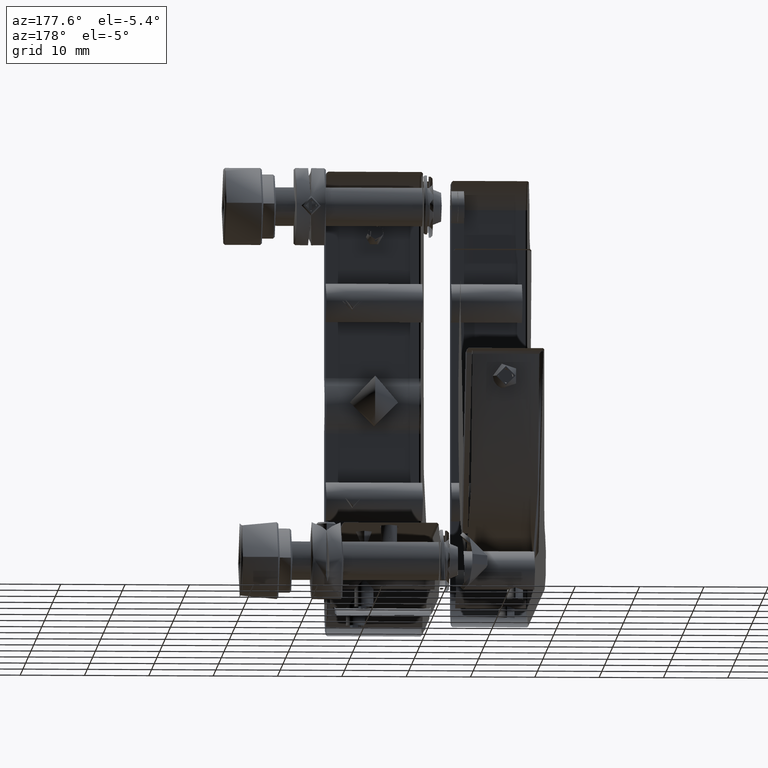
[diagram: clean part render]
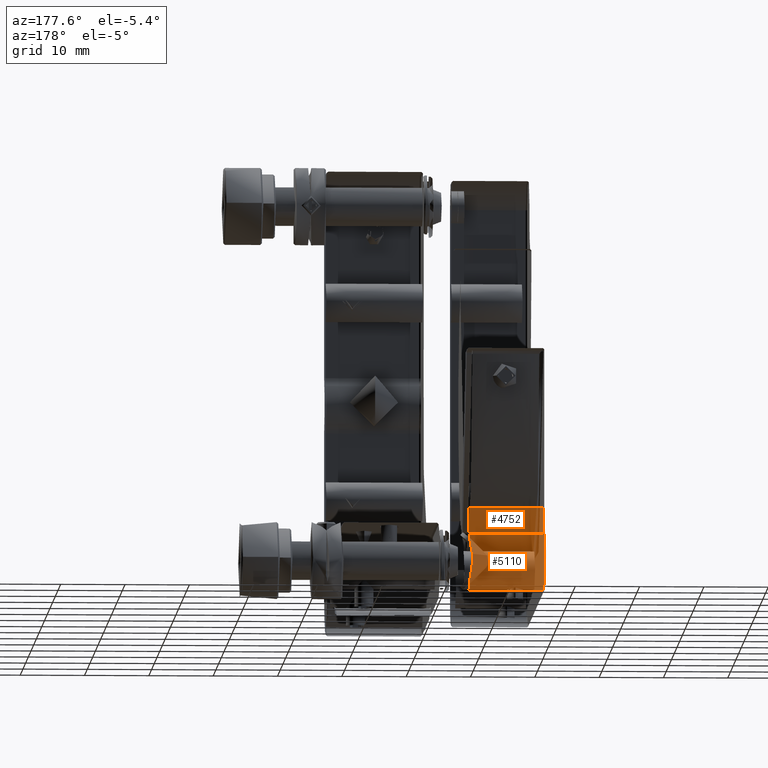
[diagram: same view with one multi-face feature highlighted, each face labeled with its STEP entity id]
A machine part, auxiliary view. The highlighted faces form ONE feature: a constant-radius fillet chain: 2 tangent blend faces with common blend radius 4.5 mm. The faces share edges in the B-rep.
Their STEP definitions:
[1] entity #5110 (Cylinder):
#81 = VERTEX_POINT ( 'NONE', #3989 ) ;
#140 = CARTESIAN_POINT ( 'NONE',  ( -5.170900697152761794, 29.18292862304679502, 21.50000000000002842 ) ) ;
#175 = ORIENTED_EDGE ( 'NONE', *, *, #9990, .F. ) ;
#227 = AXIS2_PLACEMENT_3D ( 'NONE', #9813, #4311, #12957 ) ;
#383 = AXIS2_PLACEMENT_3D ( 'NONE', #3730, #5025, #7205 ) ;
#601 = VERTEX_POINT ( 'NONE', #6920 ) ;
#657 = AXIS2_PLACEMENT_3D ( 'NONE', #140, #4473, #11209 ) ;
#677 = VERTEX_POINT ( 'NONE', #11897 ) ;
#1503 =( BOUNDED_CURVE ( )  B_SPLINE_CURVE ( 3, ( #9409, #6966, #3771, #12676 ),
 .UNSPECIFIED., .F., .F. ) 
 B_SPLINE_CURVE_WITH_KNOTS ( ( 4, 4 ),
 ( 2.974144556537464013, 3.309040748099973950 ),
 .UNSPECIFIED. ) 
 CURVE ( )  GEOMETRIC_REPRESENTATION_ITEM ( )  RATIONAL_B_SPLINE_CURVE ( ( 1.000000000000000000, 0.9906755296153387791, 0.9906755296153387791, 1.000000000000000000 ) ) 
 REPRESENTATION_ITEM ( '' )  );
#1582 = CARTESIAN_POINT ( 'NONE',  ( -5.259127782703096443, 32.34557486603663534, 24.71065781860671251 ) ) ;
#1838 = CARTESIAN_POINT ( 'NONE',  ( -4.970900697152736747, 30.66435494951085516, 25.74916180431617008 ) ) ;
#1966 = DIRECTION ( 'NONE',  ( 1.000000000000000000, -0.000000000000000000, -0.000000000000000000 ) ) ;
#2263 = CARTESIAN_POINT ( 'NONE',  ( -4.970900697152736747, 29.18292862304679502, 17.00000000000004263 ) ) ;
#2525 = CARTESIAN_POINT ( 'NONE',  ( -5.602085810460966542, 33.51069255260821933, 22.76011848307723184 ) ) ;
#2662 = CARTESIAN_POINT ( 'NONE',  ( -5.523551085270279160, 32.97558660018995624, 23.93573013670398453 ) ) ;
#3000 = EDGE_CURVE ( 'NONE', #677, #11718, #12188, .T. ) ;
#3196 = ORIENTED_EDGE ( 'NONE', *, *, #3000, .F. ) ;
#3435 = CIRCLE ( 'NONE', #11538, 4.500000000000000888 ) ;
#3613 = CARTESIAN_POINT ( 'NONE',  ( -5.337841871901749080, 32.51650065198875694, 24.53304936907239764 ) ) ;
#3618 = ORIENTED_EDGE ( 'NONE', *, *, #6171, .F. ) ;
#3730 = CARTESIAN_POINT ( 'NONE',  ( -4.970900697152736747, 29.18292862304679502, 21.50000000000004263 ) ) ;
#3767 = CARTESIAN_POINT ( 'NONE',  ( -5.170900510236193348, 32.16093726208605830, 18.12635746547165638 ) ) ;
#3771 = CARTESIAN_POINT ( 'NONE',  ( -5.449723169237613796, 33.70410615096191975, 21.24764692239976327 ) ) ;
#3802 = FACE_OUTER_BOUND ( 'NONE', #4709, .T. ) ;
#3862 = DIRECTION ( 'NONE',  ( -1.000000000000000000, -0.000000000000000000, -0.000000000000000000 ) ) ;
#3981 = CARTESIAN_POINT ( 'NONE',  ( -5.601590250204705690, 33.51240919234767546, 20.24602242519798168 ) ) ;
#3989 = CARTESIAN_POINT ( 'NONE',  ( -5.533841038542670177, 33.61998828167081399, 20.74999998869258988 ) ) ;
#4015 = CARTESIAN_POINT ( 'NONE',  ( -5.170900510236193348, 32.16093726208605830, 18.12635746547165638 ) ) ;
#4144 = CARTESIAN_POINT ( 'NONE',  ( -16.77090069715272591, 29.18292862304679502, 21.50000000000004263 ) ) ;
#4223 = VECTOR ( 'NONE', #3862, 1000.000000000000000 ) ;
#4311 = DIRECTION ( 'NONE',  ( 1.000000000000000000, -0.000000000000000000, -0.000000000000000000 ) ) ;
#4351 = VECTOR ( 'NONE', #13140, 1000.000000000000000 ) ;
#4473 = DIRECTION ( 'NONE',  ( -1.000000000000000000, 0.000000000000000000, 0.000000000000000000 ) ) ;
#4540 = ORIENTED_EDGE ( 'NONE', *, *, #12696, .F. ) ;
#4709 = EDGE_LOOP ( 'NONE', ( #4540, #3196, #13214, #9803, #14059, #12370, #175, #3618 ) ) ;
#5025 = DIRECTION ( 'NONE',  ( -1.000000000000000000, 0.000000000000000000, 0.000000000000000000 ) ) ;
#5029 = CARTESIAN_POINT ( 'NONE',  ( -16.77090069715647047, 30.66435494951364760, 25.74916180431189972 ) ) ;
#5110 = ADVANCED_FACE ( 'NONE', ( #3802 ), #8291, .F. ) ;
#5221 = VERTEX_POINT ( 'NONE', #5235 ) ;
#5235 = CARTESIAN_POINT ( 'NONE',  ( -5.170900697201997076, 30.66435494950993856, 25.74916180431644008 ) ) ;
#6052 = VERTEX_POINT ( 'NONE', #5029 ) ;
#6152 = VERTEX_POINT ( 'NONE', #4015 ) ;
#6171 = EDGE_CURVE ( 'NONE', #6052, #5221, #9586, .T. ) ;
#6659 = EDGE_CURVE ( 'NONE', #601, #81, #1503, .T. ) ;
#6733 = CARTESIAN_POINT ( 'NONE',  ( -5.170900665998046541, 32.16093767949116966, 24.87364221269313802 ) ) ;
#6835 = EDGE_CURVE ( 'NONE', #81, #6152, #6847, .T. ) ;
#6847 = B_SPLINE_CURVE_WITH_KNOTS ( 'NONE', 3,
 ( #6962, #8120, #3981, #7096, #12672, #12531, #8191, #3767 ),
 .UNSPECIFIED., .F., .F.,
 ( 4, 2, 2, 4 ),
 ( 4.987838017383381697E-11, 0.0007745802008698644435, 0.001549160351861348598, 0.003098320653844307583 ),
 .UNSPECIFIED. ) ;
#6920 = CARTESIAN_POINT ( 'NONE',  ( -5.533841040396194622, 33.61998827984257332, 22.25000002260937748 ) ) ;
#6962 = CARTESIAN_POINT ( 'NONE',  ( -5.533841038542670177, 33.61998828167081399, 20.74999998869258988 ) ) ;
#6966 = CARTESIAN_POINT ( 'NONE',  ( -5.449723169879131746, 33.70410615032039914, 21.75235308909382681 ) ) ;
#7091 = CARTESIAN_POINT ( 'NONE',  ( -5.610431057417886613, 33.33700478397042133, 23.24959723097972386 ) ) ;
#7096 = CARTESIAN_POINT ( 'NONE',  ( -5.610675163143336697, 33.34027657935784106, 19.75835717547582249 ) ) ;
#7205 = DIRECTION ( 'NONE',  ( 0.000000000000000000, 0.000000000000000000, 1.000000000000000000 ) ) ;
#7971 = CARTESIAN_POINT ( 'NONE',  ( -5.170900665998046541, 32.16093767949116966, 24.87364221269313802 ) ) ;
#8037 = CARTESIAN_POINT ( 'NONE',  ( -5.594183568489841107, 33.22991932649221525, 23.48466674196500392 ) ) ;
#8120 = CARTESIAN_POINT ( 'NONE',  ( -5.576898701513006706, 33.57693061642414278, 20.49526636781439137 ) ) ;
#8191 = CARTESIAN_POINT ( 'NONE',  ( -5.347339035947568320, 32.53017876131142572, 18.45229718062206103 ) ) ;
#8291 = CYLINDRICAL_SURFACE ( 'NONE', #383, 4.500000000000000888 ) ;
#8316 = VERTEX_POINT ( 'NONE', #6733 ) ;
#8488 = CARTESIAN_POINT ( 'NONE',  ( -16.77090069715272591, 29.18292862304679502, 17.00000000000004263 ) ) ;
#9409 = CARTESIAN_POINT ( 'NONE',  ( -5.533841040396194622, 33.61998827984257332, 22.25000002260937748 ) ) ;
#9586 = LINE ( 'NONE', #1838, #4351 ) ;
#9803 = ORIENTED_EDGE ( 'NONE', *, *, #6835, .F. ) ;
#9813 = CARTESIAN_POINT ( 'NONE',  ( -5.170900697180513816, 29.18292862304679502, 21.50000000000004263 ) ) ;
#9990 = EDGE_CURVE ( 'NONE', #5221, #8316, #11062, .T. ) ;
#11062 = CIRCLE ( 'NONE', #657, 4.500000000000000888 ) ;
#11209 = DIRECTION ( 'NONE',  ( 0.000000000000000000, 0.000000000000000000, 1.000000000000000000 ) ) ;
#11313 = EDGE_CURVE ( 'NONE', #677, #6152, #13613, .T. ) ;
#11538 = AXIS2_PLACEMENT_3D ( 'NONE', #4144, #1966, #12035 ) ;
#11718 = VERTEX_POINT ( 'NONE', #8488 ) ;
#11897 = CARTESIAN_POINT ( 'NONE',  ( -5.170900697159699355, 29.18292862304680924, 16.99999999998323119 ) ) ;
#12035 = DIRECTION ( 'NONE',  ( 0.000000000000000000, 0.000000000000000000, 1.000000000000000000 ) ) ;
#12188 = LINE ( 'NONE', #2263, #4223 ) ;
#12306 = CARTESIAN_POINT ( 'NONE',  ( -5.533841040396194622, 33.61998827984257332, 22.25000002260937748 ) ) ;
#12370 = ORIENTED_EDGE ( 'NONE', *, *, #12983, .F. ) ;
#12454 = CARTESIAN_POINT ( 'NONE',  ( -5.576993887273410166, 33.57683542829798284, 22.50529676480350716 ) ) ;
#12531 = CARTESIAN_POINT ( 'NONE',  ( -5.490068141958499126, 32.85375527193250633, 18.84700408572886587 ) ) ;
#12672 = CARTESIAN_POINT ( 'NONE',  ( -5.594322289076041343, 33.23106160006859966, 19.51796611982137719 ) ) ;
#12676 = CARTESIAN_POINT ( 'NONE',  ( -5.533841038542670177, 33.61998828167081399, 20.74999998869258988 ) ) ;
#12696 = EDGE_CURVE ( 'NONE', #11718, #6052, #3435, .T. ) ;
#12773 = B_SPLINE_CURVE_WITH_KNOTS ( 'NONE', 3,
 ( #7971, #1582, #3613, #13555, #2662, #8037, #7091, #2525, #12454, #12306 ),
 .UNSPECIFIED., .F., .F.,
 ( 4, 2, 2, 2, 4 ),
 ( 1.891080435343724483E-10, 0.0007733250577910601858, 0.001546649926474076694, 0.002319974795157093202, 0.003093299663840109927 ),
 .UNSPECIFIED. ) ;
#12957 = DIRECTION ( 'NONE',  ( 0.000000000000000000, 0.000000000000000000, 1.000000000000000000 ) ) ;
#12983 = EDGE_CURVE ( 'NONE', #8316, #601, #12773, .T. ) ;
#13140 = DIRECTION ( 'NONE',  ( 1.000000000000000000, -0.000000000000000000, -0.000000000000000000 ) ) ;
#13214 = ORIENTED_EDGE ( 'NONE', *, *, #11313, .T. ) ;
#13555 = CARTESIAN_POINT ( 'NONE',  ( -5.469916806892221928, 32.83099426878898441, 24.14645196286087625 ) ) ;
#13613 = CIRCLE ( 'NONE', #227, 4.500000000067259087 ) ;
#14059 = ORIENTED_EDGE ( 'NONE', *, *, #6659, .F. ) ;
[2] entity #4752 (Cylinder):
#255 = DIRECTION ( 'NONE',  ( -1.000000000000000000, 0.000000000000000000, 0.000000000000000000 ) ) ;
#723 = CARTESIAN_POINT ( 'NONE',  ( -4.970900697152736747, 32.14578127597491886, 29.99832360863230818 ) ) ;
#1501 = AXIS2_PLACEMENT_3D ( 'NONE', #723, #2812, #5136 ) ;
#1838 = CARTESIAN_POINT ( 'NONE',  ( -4.970900697152736747, 30.66435494951085516, 25.74916180431617008 ) ) ;
#1841 = CIRCLE ( 'NONE', #6940, 4.499999999987739585 ) ;
#2097 = VERTEX_POINT ( 'NONE', #9770 ) ;
#2213 = VECTOR ( 'NONE', #255, 1000.000000000000000 ) ;
#2402 = ORIENTED_EDGE ( 'NONE', *, *, #6171, .T. ) ;
#2812 = DIRECTION ( 'NONE',  ( -1.000000000000000000, 0.000000000000000000, 0.000000000000000000 ) ) ;
#3277 = CARTESIAN_POINT ( 'NONE',  ( -4.970900697152736747, 27.64578127597492241, 29.99832360863230818 ) ) ;
#4351 = VECTOR ( 'NONE', #13140, 1000.000000000000000 ) ;
#4752 = ADVANCED_FACE ( 'NONE', ( #12744 ), #10639, .T. ) ;
#5029 = CARTESIAN_POINT ( 'NONE',  ( -16.77090069715647047, 30.66435494951364760, 25.74916180431189972 ) ) ;
#5136 = DIRECTION ( 'NONE',  ( 0.000000000000000000, 0.000000000000000000, 1.000000000000000000 ) ) ;
#5221 = VERTEX_POINT ( 'NONE', #5235 ) ;
#5235 = CARTESIAN_POINT ( 'NONE',  ( -5.170900697201997076, 30.66435494950993856, 25.74916180431644008 ) ) ;
#5352 = EDGE_CURVE ( 'NONE', #2097, #6066, #12041, .T. ) ;
#5665 = DIRECTION ( 'NONE',  ( 0.000000000000000000, 0.000000000000000000, -1.000000000000000000 ) ) ;
#5906 = CARTESIAN_POINT ( 'NONE',  ( -16.77090069715647047, 27.64578127597231827, 29.99832360863230818 ) ) ;
#6052 = VERTEX_POINT ( 'NONE', #5029 ) ;
#6066 = VERTEX_POINT ( 'NONE', #5906 ) ;
#6171 = EDGE_CURVE ( 'NONE', #6052, #5221, #9586, .T. ) ;
#6940 = AXIS2_PLACEMENT_3D ( 'NONE', #9667, #9735, #5665 ) ;
#7318 = DIRECTION ( 'NONE',  ( 0.000000000000000000, 0.000000000000000000, 1.000000000000000000 ) ) ;
#7608 = EDGE_LOOP ( 'NONE', ( #12970, #10407, #9056, #2402 ) ) ;
#8127 = EDGE_CURVE ( 'NONE', #6066, #6052, #12461, .T. ) ;
#9056 = ORIENTED_EDGE ( 'NONE', *, *, #8127, .T. ) ;
#9586 = LINE ( 'NONE', #1838, #4351 ) ;
#9667 = CARTESIAN_POINT ( 'NONE',  ( -5.170900697237357235, 32.14578127597491886, 29.99832360863230818 ) ) ;
#9735 = DIRECTION ( 'NONE',  ( 1.000000000000000000, 0.000000000000000000, 0.000000000000000000 ) ) ;
#9770 = CARTESIAN_POINT ( 'NONE',  ( -5.170900697209271257, 27.64578127598959867, 29.99832360863231528 ) ) ;
#10407 = ORIENTED_EDGE ( 'NONE', *, *, #5352, .T. ) ;
#10639 = CYLINDRICAL_SURFACE ( 'NONE', #1501, 4.500000000000000888 ) ;
#11052 = AXIS2_PLACEMENT_3D ( 'NONE', #12829, #13704, #7318 ) ;
#12041 = LINE ( 'NONE', #3277, #2213 ) ;
#12461 = CIRCLE ( 'NONE', #11052, 4.500000000000000888 ) ;
#12744 = FACE_OUTER_BOUND ( 'NONE', #7608, .T. ) ;
#12829 = CARTESIAN_POINT ( 'NONE',  ( -16.77090069715272591, 32.14578127597491886, 29.99832360863230818 ) ) ;
#12970 = ORIENTED_EDGE ( 'NONE', *, *, #13449, .F. ) ;
#13140 = DIRECTION ( 'NONE',  ( 1.000000000000000000, -0.000000000000000000, -0.000000000000000000 ) ) ;
#13449 = EDGE_CURVE ( 'NONE', #2097, #5221, #1841, .T. ) ;
#13704 = DIRECTION ( 'NONE',  ( 1.000000000000000000, -0.000000000000000000, -0.000000000000000000 ) ) ;